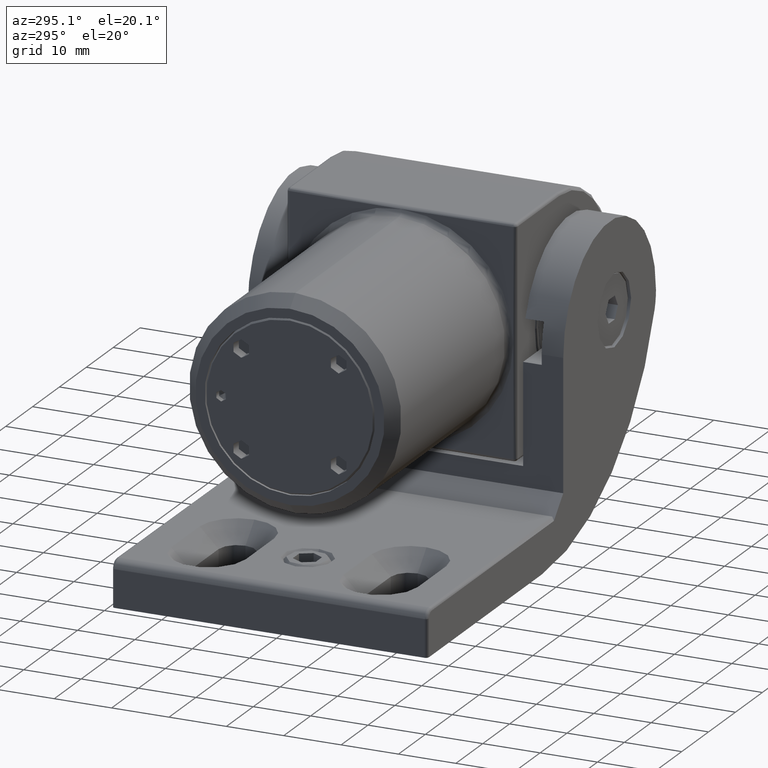
[diagram: clean part render]
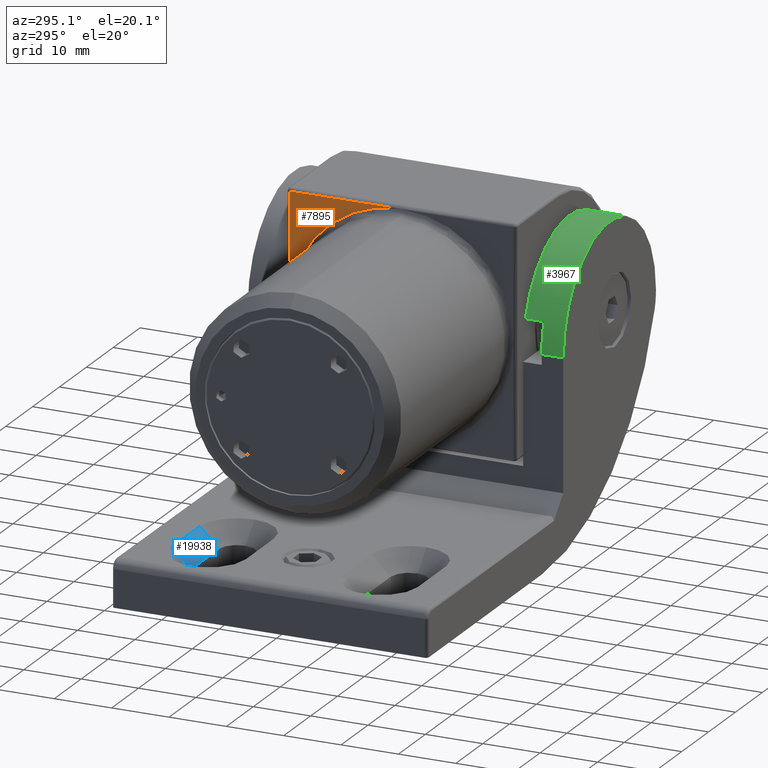
[diagram: same view with three faces highlighted in distinct colors, each labeled with its STEP entity id]
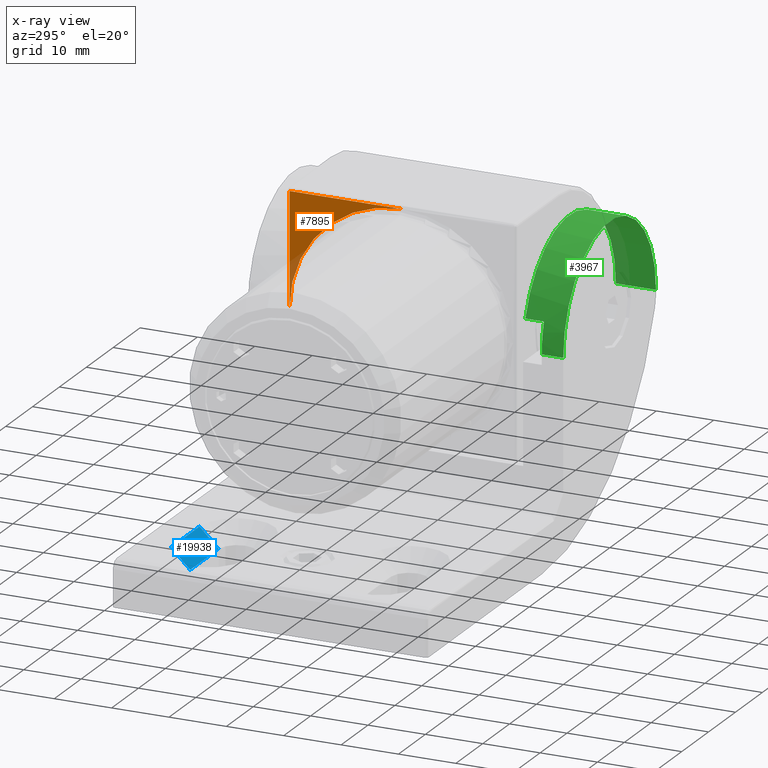
[diagram: x-ray of the same camera — body ghosted, the three highlighted faces saturated]
A machine part, auxiliary view with three faces highlighted in distinct colors.
The next image is the same camera in x-ray (body ghosted, the three faces saturated) — at least one of them is partly hidden behind the body in this view.
Their STEP definitions:

[orange] entity #7895 — the highlighted planar face has unit normal (1, 0, -0).
#1480 = EDGE_LOOP ( 'NONE', ( #25073, #15947, #1506 ) ) ;
#1506 = ORIENTED_EDGE ( 'NONE', *, *, #21387, .T. ) ;
#1781 = DIRECTION ( 'NONE',  ( 0.000000000000000000, 0.000000000000000000, -1.000000000000000000 ) ) ;
#3375 = VECTOR ( 'NONE', #10505, 1000.000000000000000 ) ;
#5645 = DIRECTION ( 'NONE',  ( -1.000000000000000000, 0.000000000000000000, 0.000000000000000000 ) ) ;
#7494 = PLANE ( 'NONE',  #10868 ) ;
#7895 = ADVANCED_FACE ( 'NONE', ( #15030 ), #7494, .F. ) ;
#8461 = VECTOR ( 'NONE', #21944, 1000.000000000000000 ) ;
#9385 = VERTEX_POINT ( 'NONE', #19278 ) ;
#9534 = VERTEX_POINT ( 'NONE', #21767 ) ;
#9563 = EDGE_CURVE ( 'NONE', #12724, #9534, #23859, .T. ) ;
#10505 = DIRECTION ( 'NONE',  ( -1.000000000000000000, -0.000000000000000000, -0.000000000000000000 ) ) ;
#10868 = AXIS2_PLACEMENT_3D ( 'NONE', #21370, #1781, #5645 ) ;
#10921 = AXIS2_PLACEMENT_3D ( 'NONE', #25299, #15599, #21187 ) ;
#11974 = CARTESIAN_POINT ( 'NONE',  ( 19.49999999999999645, 20.00000000000000355, 0.000000000000000000 ) ) ;
#12724 = VERTEX_POINT ( 'NONE', #18318 ) ;
#15030 = FACE_OUTER_BOUND ( 'NONE', #1480, .T. ) ;
#15284 = CIRCLE ( 'NONE', #10921, 19.50000000000000000 ) ;
#15599 = DIRECTION ( 'NONE',  ( 0.000000000000000000, 0.000000000000000000, -1.000000000000000000 ) ) ;
#15947 = ORIENTED_EDGE ( 'NONE', *, *, #9563, .T. ) ;
#16033 = CARTESIAN_POINT ( 'NONE',  ( -20.00000000000000000, 19.50000000000000355, 0.000000000000000000 ) ) ;
#17866 = EDGE_CURVE ( 'NONE', #9385, #12724, #22255, .T. ) ;
#18318 = CARTESIAN_POINT ( 'NONE',  ( 19.49999999999999645, 19.50000000000000355, 0.000000000000000000 ) ) ;
#19278 = CARTESIAN_POINT ( 'NONE',  ( 19.49999999999999645, 0.000000000000000000, 0.000000000000000000 ) ) ;
#21187 = DIRECTION ( 'NONE',  ( -1.000000000000000000, 0.000000000000000000, 0.000000000000000000 ) ) ;
#21370 = CARTESIAN_POINT ( 'NONE',  ( -20.00000000000000000, 20.00000000000000355, 0.000000000000000000 ) ) ;
#21387 = EDGE_CURVE ( 'NONE', #9534, #9385, #15284, .T. ) ;
#21767 = CARTESIAN_POINT ( 'NONE',  ( 0.000000000000000000, 19.50000000000000355, 0.000000000000000000 ) ) ;
#21944 = DIRECTION ( 'NONE',  ( -0.000000000000000000, 1.000000000000000000, -0.000000000000000000 ) ) ;
#22255 = LINE ( 'NONE', #11974, #8461 ) ;
#23859 = LINE ( 'NONE', #16033, #3375 ) ;
#25073 = ORIENTED_EDGE ( 'NONE', *, *, #17866, .T. ) ;
#25299 = CARTESIAN_POINT ( 'NONE',  ( 0.000000000000000000, 0.000000000000000000, 0.000000000000000000 ) ) ;

[blue] entity #19938 — the highlighted planar face has unit normal (0, 0.7071, -0.7071).
#414 = EDGE_CURVE ( 'NONE', #15736, #1846, #17387, .T. ) ;
#1846 = VERTEX_POINT ( 'NONE', #23720 ) ;
#2750 = AXIS2_PLACEMENT_3D ( 'NONE', #16343, #8449, #16011 ) ;
#2832 = CARTESIAN_POINT ( 'NONE',  ( -33.30000000000001137, 21.49999999999999645, -17.49999999999999645 ) ) ;
#3038 = CARTESIAN_POINT ( 'NONE',  ( -22.70000000000001350, 18.19999999999999218, -20.80000000000000071 ) ) ;
#5724 = LINE ( 'NONE', #2832, #12082 ) ;
#5805 = ORIENTED_EDGE ( 'NONE', *, *, #22674, .T. ) ;
#6061 = VECTOR ( 'NONE', #7395, 1000.000000000000000 ) ;
#6370 = LINE ( 'NONE', #21289, #6061 ) ;
#7395 = DIRECTION ( 'NONE',  ( 1.000000000000000000, -0.000000000000000000, -0.000000000000000000 ) ) ;
#7418 = ORIENTED_EDGE ( 'NONE', *, *, #414, .T. ) ;
#8428 = DIRECTION ( 'NONE',  ( -0.000000000000000000, -0.7071067811865479058, -0.7071067811865471286 ) ) ;
#8449 = DIRECTION ( 'NONE',  ( -0.000000000000000000, 0.7071067811865471286, -0.7071067811865479058 ) ) ;
#8610 = CARTESIAN_POINT ( 'NONE',  ( -22.70000000000001350, 21.49999999999999645, -17.49999999999999645 ) ) ;
#12082 = VECTOR ( 'NONE', #16337, 1000.000000000000000 ) ;
#12376 = PLANE ( 'NONE',  #2750 ) ;
#12532 = ORIENTED_EDGE ( 'NONE', *, *, #18593, .F. ) ;
#14117 = ORIENTED_EDGE ( 'NONE', *, *, #19092, .T. ) ;
#15021 = DIRECTION ( 'NONE',  ( 0.000000000000000000, 0.7071067811865479058, 0.7071067811865471286 ) ) ;
#15736 = VERTEX_POINT ( 'NONE', #22575 ) ;
#16011 = DIRECTION ( 'NONE',  ( 0.000000000000000000, 0.7071067811865479058, 0.7071067811865471286 ) ) ;
#16337 = DIRECTION ( 'NONE',  ( 1.000000000000000000, -0.000000000000000000, -0.000000000000000000 ) ) ;
#16343 = CARTESIAN_POINT ( 'NONE',  ( -33.30000000000001137, 14.99999999999999645, -23.99999999999998934 ) ) ;
#16481 = CARTESIAN_POINT ( 'NONE',  ( -33.30000000000001137, 14.99999999999999645, -23.99999999999998934 ) ) ;
#17003 = CARTESIAN_POINT ( 'NONE',  ( -22.70000000000001350, 14.99999999999999645, -23.99999999999998934 ) ) ;
#17387 = LINE ( 'NONE', #16481, #21655 ) ;
#18531 = VECTOR ( 'NONE', #15021, 1000.000000000000000 ) ;
#18593 = EDGE_CURVE ( 'NONE', #15736, #20139, #5724, .T. ) ;
#19092 = EDGE_CURVE ( 'NONE', #19409, #20139, #20390, .T. ) ;
#19409 = VERTEX_POINT ( 'NONE', #3038 ) ;
#19938 = ADVANCED_FACE ( 'NONE', ( #20047 ), #12376, .F. ) ;
#20047 = FACE_OUTER_BOUND ( 'NONE', #22163, .T. ) ;
#20139 = VERTEX_POINT ( 'NONE', #8610 ) ;
#20390 = LINE ( 'NONE', #17003, #18531 ) ;
#21289 = CARTESIAN_POINT ( 'NONE',  ( -33.30000000000001137, 18.19999999999999218, -20.80000000000000071 ) ) ;
#21655 = VECTOR ( 'NONE', #8428, 1000.000000000000000 ) ;
#22163 = EDGE_LOOP ( 'NONE', ( #14117, #12532, #7418, #5805 ) ) ;
#22575 = CARTESIAN_POINT ( 'NONE',  ( -33.30000000000001137, 21.49999999999999645, -17.49999999999999645 ) ) ;
#22674 = EDGE_CURVE ( 'NONE', #1846, #19409, #6370, .T. ) ;
#23720 = CARTESIAN_POINT ( 'NONE',  ( -33.30000000000001137, 18.19999999999999218, -20.80000000000000071 ) ) ;

[green] entity #3967 — the highlighted cylindrical surface (partial cylindrical patch) has radius 17.25 mm, axis along (-0, -1, -0).
#1318 = DIRECTION ( 'NONE',  ( -0.000000000000000000, -1.000000000000000000, -0.000000000000000000 ) ) ;
#1523 = EDGE_CURVE ( 'NONE', #19062, #22382, #9355, .T. ) ;
#1986 = DIRECTION ( 'NONE',  ( 0.000000000000000000, -1.000000000000000000, 0.000000000000000000 ) ) ;
#2325 = DIRECTION ( 'NONE',  ( 0.000000000000000000, 0.000000000000000000, 1.000000000000000000 ) ) ;
#2538 = VERTEX_POINT ( 'NONE', #18215 ) ;
#3009 = EDGE_CURVE ( 'NONE', #2538, #11375, #14528, .T. ) ;
#3885 = CIRCLE ( 'NONE', #9101, 17.25000000000000711 ) ;
#3890 = EDGE_CURVE ( 'NONE', #22382, #15330, #3885, .T. ) ;
#3967 = ADVANCED_FACE ( 'NONE', ( #5402 ), #12375, .T. ) ;
#4080 = EDGE_LOOP ( 'NONE', ( #11013, #21685, #13590, #20565, #22328, #17564 ) ) ;
#4571 = CARTESIAN_POINT ( 'NONE',  ( 25.25000000000000000, 27.50000000000000000, 8.249999999999996447 ) ) ;
#5402 = FACE_OUTER_BOUND ( 'NONE', #4080, .T. ) ;
#6059 = CIRCLE ( 'NONE', #7402, 17.25000000000000711 ) ;
#6741 = DIRECTION ( 'NONE',  ( -0.000000000000000000, -1.000000000000000000, -0.000000000000000000 ) ) ;
#7402 = AXIS2_PLACEMENT_3D ( 'NONE', #23564, #9849, #15874 ) ;
#7568 = DIRECTION ( 'NONE',  ( -0.000000000000000000, -1.000000000000000000, -0.000000000000000000 ) ) ;
#7793 = CARTESIAN_POINT ( 'NONE',  ( 25.25000000000000000, -20.50000000000000000, 8.249999999999996447 ) ) ;
#8112 = CARTESIAN_POINT ( 'NONE',  ( 8.818323274845010218, -20.50000000000000000, 13.49999999999999822 ) ) ;
#8582 = CARTESIAN_POINT ( 'NONE',  ( 7.999999999999992895, 27.50000000000000000, 8.249999999999992895 ) ) ;
#8598 = AXIS2_PLACEMENT_3D ( 'NONE', #7793, #1986, #11788 ) ;
#9101 = AXIS2_PLACEMENT_3D ( 'NONE', #10159, #17878, #2325 ) ;
#9355 = LINE ( 'NONE', #8582, #25310 ) ;
#9849 = DIRECTION ( 'NONE',  ( 0.000000000000000000, 1.000000000000000000, 0.000000000000000000 ) ) ;
#9992 = LINE ( 'NONE', #13007, #19810 ) ;
#10159 = CARTESIAN_POINT ( 'NONE',  ( 25.25000000000000000, -27.50000000000000000, 8.249999999999996447 ) ) ;
#10531 = CARTESIAN_POINT ( 'NONE',  ( 8.818323274845010218, -23.75000000000000355, 13.49999999999999822 ) ) ;
#10698 = VERTEX_POINT ( 'NONE', #10531 ) ;
#11013 = ORIENTED_EDGE ( 'NONE', *, *, #3009, .T. ) ;
#11375 = VERTEX_POINT ( 'NONE', #8112 ) ;
#11788 = DIRECTION ( 'NONE',  ( 0.000000000000000000, 0.000000000000000000, -1.000000000000000000 ) ) ;
#12352 = CARTESIAN_POINT ( 'NONE',  ( 8.000000000000000000, -23.75000000000000355, 8.249999999999987566 ) ) ;
#12375 = CYLINDRICAL_SURFACE ( 'NONE', #16495, 17.25000000000000711 ) ;
#13007 = CARTESIAN_POINT ( 'NONE',  ( 8.818323274845010218, 27.50000000000000000, 13.49999999999999822 ) ) ;
#13590 = ORIENTED_EDGE ( 'NONE', *, *, #16227, .F. ) ;
#14528 = CIRCLE ( 'NONE', #8598, 17.25000000000000711 ) ;
#14615 = DIRECTION ( 'NONE',  ( 0.000000000000000000, 0.000000000000000000, -1.000000000000000000 ) ) ;
#15055 = EDGE_CURVE ( 'NONE', #2538, #15330, #25384, .T. ) ;
#15330 = VERTEX_POINT ( 'NONE', #18994 ) ;
#15602 = CARTESIAN_POINT ( 'NONE',  ( 42.49999999999999289, 27.50000000000000000, 8.249999999999989342 ) ) ;
#15874 = DIRECTION ( 'NONE',  ( 0.000000000000000000, 0.000000000000000000, 1.000000000000000000 ) ) ;
#16227 = EDGE_CURVE ( 'NONE', #19062, #10698, #6059, .T. ) ;
#16495 = AXIS2_PLACEMENT_3D ( 'NONE', #4571, #6741, #14615 ) ;
#16558 = CARTESIAN_POINT ( 'NONE',  ( 7.999999999999992895, -27.50000000000000000, 8.249999999999992895 ) ) ;
#17564 = ORIENTED_EDGE ( 'NONE', *, *, #15055, .F. ) ;
#17878 = DIRECTION ( 'NONE',  ( 0.000000000000000000, 1.000000000000000000, 0.000000000000000000 ) ) ;
#18020 = VECTOR ( 'NONE', #7568, 1000.000000000000000 ) ;
#18215 = CARTESIAN_POINT ( 'NONE',  ( 42.50000000000000000, -20.50000000000000000, 8.249999999999989342 ) ) ;
#18994 = CARTESIAN_POINT ( 'NONE',  ( 42.49999999999999289, -27.50000000000000000, 8.249999999999989342 ) ) ;
#19062 = VERTEX_POINT ( 'NONE', #12352 ) ;
#19810 = VECTOR ( 'NONE', #1318, 1000.000000000000000 ) ;
#20565 = ORIENTED_EDGE ( 'NONE', *, *, #1523, .T. ) ;
#21685 = ORIENTED_EDGE ( 'NONE', *, *, #22972, .T. ) ;
#22298 = DIRECTION ( 'NONE',  ( -0.000000000000000000, -1.000000000000000000, -0.000000000000000000 ) ) ;
#22328 = ORIENTED_EDGE ( 'NONE', *, *, #3890, .T. ) ;
#22382 = VERTEX_POINT ( 'NONE', #16558 ) ;
#22972 = EDGE_CURVE ( 'NONE', #11375, #10698, #9992, .T. ) ;
#23564 = CARTESIAN_POINT ( 'NONE',  ( 25.25000000000000000, -23.75000000000000355, 8.249999999999996447 ) ) ;
#25310 = VECTOR ( 'NONE', #22298, 1000.000000000000000 ) ;
#25384 = LINE ( 'NONE', #15602, #18020 ) ;